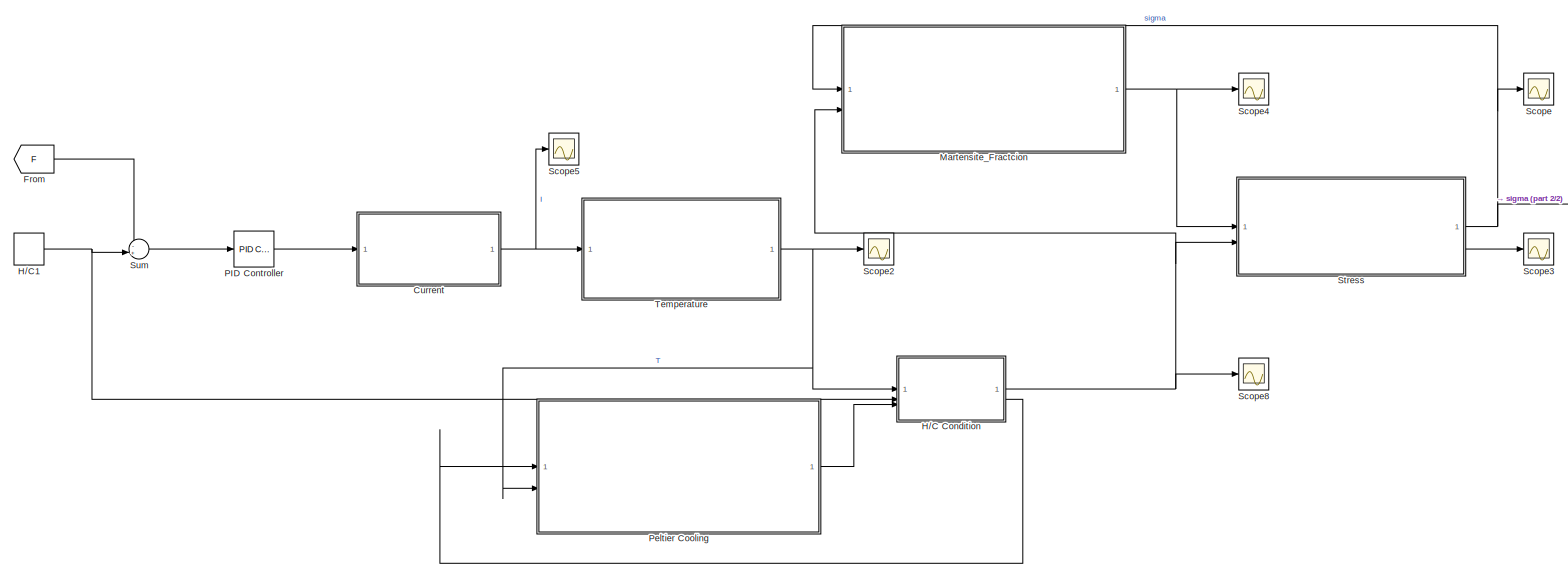
[diagram: root canvas - part 1/2, most of the canvas]
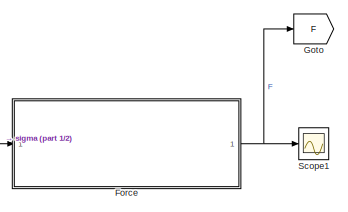
[diagram: root canvas - part 2/2, top right region]
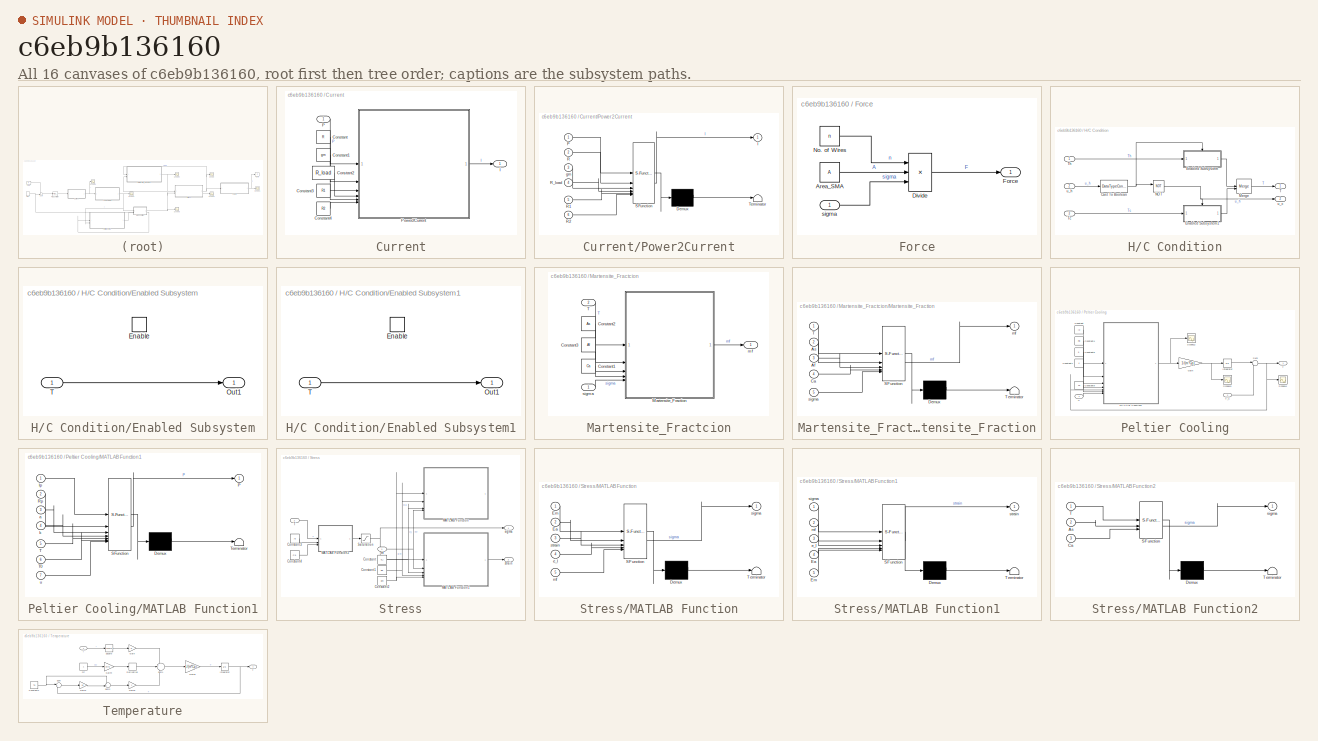
[diagram: thumbnail index - all 16 canvases of the model, root first then tree order]
MODEL slx_c6eb9b136160
KIND model
CONFIG AbsTol = auto
CONFIG EnableMultiTasking = off
CONFIG FixedStep = auto
CONFIG MaxStep = auto
CONFIG MinStep = auto
CONFIG RelTol = 1e-2
CONFIG SampleTimeConstraint = Unconstrained
CONFIG SolverName = VariableStepAuto
CONFIG StartTime = 0.0
CONFIG StopTime = 6
BLOCK [SubSystem] Current
BLOCK [Constant] Current/Constant
  Value = R
BLOCK [Constant] Current/Constant1
  Value = gm
BLOCK [Constant] Current/Constant2
  Value = R_load
BLOCK [Constant] Current/Constant3
  Value = R1
BLOCK [Constant] Current/Constant4
  Value = R2
BLOCK [Outport] Current/I
BLOCK [Inport] Current/P
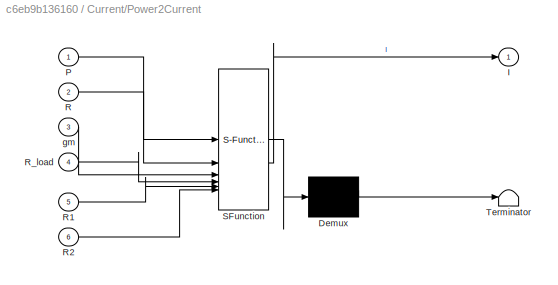
BLOCK [SubSystem] Current/Power2Current
  ErrorFcn = Stateflow.Translate.translate
  PermitHierarchicalResolution = ExplicitOnly
  SFBlockType = MATLAB Function
  TreatAsAtomicUnit = on
BLOCK [Demux] Current/Power2Current/ Demux 
  Outputs = 1
BLOCK [S-Function] Current/Power2Current/ SFunction 
  EnableBusSupport = on
  FunctionName = sf_sfun
  PortCounts = [6 2]
  SFcnIsStateOwnerBlock = off
  SFunctionDeploymentMode = off
  Tag = Stateflow S-Function 3
BLOCK [Terminator] Current/Power2Current/ Terminator 
BLOCK [Outport] Current/Power2Current/I
BLOCK [Inport] Current/Power2Current/P
BLOCK [Inport] Current/Power2Current/R
  Port = 2
BLOCK [Inport] Current/Power2Current/R1
  Port = 5
BLOCK [Inport] Current/Power2Current/R2
  Port = 6
BLOCK [Inport] Current/Power2Current/R_load
  Port = 4
BLOCK [Inport] Current/Power2Current/gm
  Port = 3
BLOCK [SubSystem] Force
BLOCK [Constant] Force/Area_SMA
  Value = A
BLOCK [Product] Force/Divide
  Inputs = ***
BLOCK [Outport] Force/Force
BLOCK [Constant] Force/No. of Wires
  Value = n
BLOCK [Inport] Force/sigma
BLOCK [From] From
  GotoTag = F
BLOCK [Goto] Goto
  GotoTag = F
BLOCK [SubSystem] H//C Condition
BLOCK [DataTypeConversion] H//C Condition/Cast To Boolean
  OutDataTypeStr = boolean
  RndMeth = Floor
  SaturateOnIntegerOverflow = off
BLOCK [SubSystem] H//C Condition/Enabled Subsystem
  TreatAsAtomicUnit = on
BLOCK [EnablePort] H//C Condition/Enabled Subsystem/Enable
BLOCK [Outport] H//C Condition/Enabled Subsystem/Out1
BLOCK [Inport] H//C Condition/Enabled Subsystem/T
BLOCK [SubSystem] H//C Condition/Enabled Subsystem1
  TreatAsAtomicUnit = on
BLOCK [EnablePort] H//C Condition/Enabled Subsystem1/Enable
BLOCK [Outport] H//C Condition/Enabled Subsystem1/Out1
BLOCK [Inport] H//C Condition/Enabled Subsystem1/T
BLOCK [Merge] H//C Condition/Merge
BLOCK [Logic] H//C Condition/NOT
  AllPortsSameDT = off
  IconShape = distinctive
  Operator = NOT
  OutDataTypeStr = boolean
BLOCK [Outport] H//C Condition/T
BLOCK [Inport] H//C Condition/Tc
  Port = 3
BLOCK [Inport] H//C Condition/Th
BLOCK [Outport] H//C Condition/u_c
  Port = 2
BLOCK [Inport] H//C Condition/u_h
  Port = 2
BLOCK [DiscretePulseGenerator] H//C1
  Amplitude = 20
  Period = 6
  PulseType = Time based
  PulseWidth = 50
BLOCK [SubSystem] Martensite_Fractcion
BLOCK [Constant] Martensite_Fractcion/Constant1
  Value = Ca
BLOCK [Constant] Martensite_Fractcion/Constant2
  Value = As
BLOCK [Constant] Martensite_Fractcion/Constant3
  Value = Af
BLOCK [SubSystem] Martensite_Fractcion/Martensite_Fraction
  ErrorFcn = Stateflow.Translate.translate
  PermitHierarchicalResolution = ExplicitOnly
  SFBlockType = MATLAB Function
  TreatAsAtomicUnit = on
BLOCK [Demux] Martensite_Fractcion/Martensite_Fraction/ Demux 
  Outputs = 1
BLOCK [S-Function] Martensite_Fractcion/Martensite_Fraction/ SFunction 
  EnableBusSupport = on
  FunctionName = sf_sfun
  PortCounts = [5 2]
  SFcnIsStateOwnerBlock = off
  SFunctionDeploymentMode = off
  Tag = Stateflow S-Function 1
BLOCK [Terminator] Martensite_Fractcion/Martensite_Fraction/ Terminator 
BLOCK [Inport] Martensite_Fractcion/Martensite_Fraction/Af
  Port = 3
BLOCK [Inport] Martensite_Fractcion/Martensite_Fraction/As
  Port = 2
BLOCK [Inport] Martensite_Fractcion/Martensite_Fraction/Ca
  Port = 4
BLOCK [Inport] Martensite_Fractcion/Martensite_Fraction/T
BLOCK [Outport] Martensite_Fractcion/Martensite_Fraction/mf
BLOCK [Inport] Martensite_Fractcion/Martensite_Fraction/sigma
  Port = 5
BLOCK [Inport] Martensite_Fractcion/T
  Port = 2
BLOCK [Outport] Martensite_Fractcion/mf
BLOCK [Inport] Martensite_Fractcion/sigma
BLOCK [Reference] PID Controller  REF=slpidlib/PID Controller
  LibrarySourceBlock = simulink/Continuous/PID Controller
  SourceBlock = slpidlib/PID Controller
  SourceType = PID 1dof
BLOCK [SubSystem] Peltier Cooling
BLOCK [Constant] Peltier Cooling/Constant
  Value = Ip
BLOCK [Constant] Peltier Cooling/Constant4
  Value = Rp
BLOCK [Constant] Peltier Cooling/Constant6
  Value = a
BLOCK [Constant] Peltier Cooling/Constant7
  Value = k
BLOCK [Constant] Peltier Cooling/Constant9
  Value = T0
BLOCK [Gain] Peltier Cooling/Gain
  Gain = 1/(m*Cp)
BLOCK [Integrator] Peltier Cooling/Integrator
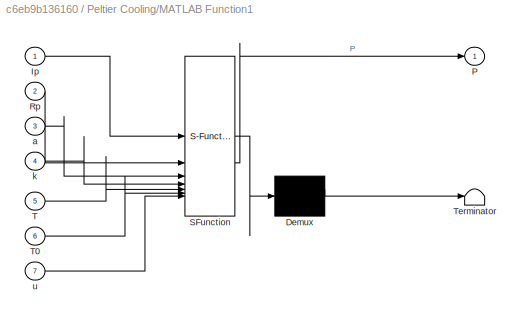
BLOCK [SubSystem] Peltier Cooling/MATLAB Function1
  ErrorFcn = Stateflow.Translate.translate
  PermitHierarchicalResolution = ExplicitOnly
  SFBlockType = MATLAB Function
  TreatAsAtomicUnit = on
BLOCK [Demux] Peltier Cooling/MATLAB Function1/ Demux 
  Outputs = 1
BLOCK [S-Function] Peltier Cooling/MATLAB Function1/ SFunction 
  EnableBusSupport = on
  FunctionName = sf_sfun
  PortCounts = [7 2]
  SFcnIsStateOwnerBlock = off
  SFunctionDeploymentMode = off
  Tag = Stateflow S-Function 7
BLOCK [Terminator] Peltier Cooling/MATLAB Function1/ Terminator 
BLOCK [Inport] Peltier Cooling/MATLAB Function1/Ip
BLOCK [Outport] Peltier Cooling/MATLAB Function1/P
BLOCK [Inport] Peltier Cooling/MATLAB Function1/Rp
  Port = 2
BLOCK [Inport] Peltier Cooling/MATLAB Function1/T
  Port = 5
BLOCK [Inport] Peltier Cooling/MATLAB Function1/T0
  Port = 6
BLOCK [Inport] Peltier Cooling/MATLAB Function1/a
  Port = 3
BLOCK [Inport] Peltier Cooling/MATLAB Function1/k
  Port = 4
BLOCK [Inport] Peltier Cooling/MATLAB Function1/u
  Port = 7
BLOCK [Scope] Peltier Cooling/Scope12
  Floating = off
  NumInputPorts = 1
  ScopeSpecificationString = Simulink.scopes.TimeScopeBlockCfg('CurrentConfiguration', extmgr.ConfigurationSet(extmgr.Configuration('Core','General UI',true),extmgr.Configuration('Core','Source UI',true),extmgr.Configuration('Sources','WiredSimulink',true,'DataLoggingVariableName','ScopeData5'),extmgr.Configuration('Visuals','Time Domain',true,'SerializedDisplays',{struct('MinYLimReal','-0.000018','MaxYLimReal','0.000002','YL...<+1457ch>
BLOCK [Scope] Peltier Cooling/Scope13
  Floating = off
  NumInputPorts = 1
  ScopeSpecificationString = Simulink.scopes.TimeScopeBlockCfg('CurrentConfiguration', extmgr.ConfigurationSet(extmgr.Configuration('Core','General UI',true),extmgr.Configuration('Core','Source UI',true),extmgr.Configuration('Sources','WiredSimulink',true,'DataLoggingVariableName','ScopeData6'),extmgr.Configuration('Visuals','Time Domain',true,'SerializedDisplays',{struct('MinYLimReal','-14334.91799','MaxYLimReal','1592.76867...<+1468ch>
BLOCK [Scope] Peltier Cooling/Scope14
  Floating = off
  NumInputPorts = 1
  ScopeSpecificationString = Simulink.scopes.TimeScopeBlockCfg('CurrentConfiguration', extmgr.ConfigurationSet(extmgr.Configuration('Core','General UI',true),extmgr.Configuration('Core','Source UI',true),extmgr.Configuration('Sources','WiredSimulink',true,'DataLoggingVariableName','ScopeData7'),extmgr.Configuration('Visuals','Time Domain',true,'SerializedDisplays',{struct('MinYLimReal','-2.7554','MaxYLimReal','24.79859','YLab...<+1441ch>
BLOCK [Sum] Peltier Cooling/Sum
  Inputs = |++
BLOCK [Outport] Peltier Cooling/T
BLOCK [Inport] Peltier Cooling/T_h
  Port = 2
BLOCK [Inport] Peltier Cooling/u
BLOCK [Scope] Scope
  Floating = off
  NumInputPorts = 1
  ScopeSpecificationString = Simulink.scopes.TimeScopeBlockCfg('CurrentConfiguration', extmgr.ConfigurationSet(extmgr.Configuration('Core','General UI',true),extmgr.Configuration('Core','Source UI',true),extmgr.Configuration('Sources','WiredSimulink',true),extmgr.Configuration('Visuals','Time Domain',true,'SerializedDisplays',{struct('MinYLimReal','-21.25','MaxYLimReal','191.25','YLabelReal','','MinYLimMag','0.00000','MaxYLim...<+1361ch>
BLOCK [Scope] Scope1
  Floating = off
  NumInputPorts = 1
  ScopeSpecificationString = Simulink.scopes.TimeScopeBlockCfg('CurrentConfiguration', extmgr.ConfigurationSet(extmgr.Configuration('Core','General UI',true),extmgr.Configuration('Core','Source UI',true),extmgr.Configuration('Sources','WiredSimulink',true,'DataLoggingVariableName','ScopeData1'),extmgr.Configuration('Visuals','Time Domain',true,'SerializedDisplays',{struct('MinYLimReal','-5.34071','MaxYLimReal','48.06637','YLa...<+1439ch>
BLOCK [Scope] Scope2
  Floating = off
  NumInputPorts = 1
  ScopeSpecificationString = Simulink.scopes.TimeScopeBlockCfg('CurrentConfiguration', extmgr.ConfigurationSet(extmgr.Configuration('Core','General UI',true),extmgr.Configuration('Core','Source UI',true),extmgr.Configuration('Sources','WiredSimulink',true,'DataLoggingVariableName','ScopeData2'),extmgr.Configuration('Visuals','Time Domain',true,'SerializedDisplays',{struct('MinYLimReal','-1301.25979','MaxYLimReal','11711.33808...<+1430ch>
BLOCK [Scope] Scope3
  Floating = off
  NumInputPorts = 1
  ScopeSpecificationString = Simulink.scopes.TimeScopeBlockCfg('CurrentConfiguration', extmgr.ConfigurationSet(extmgr.Configuration('Core','General UI',true),extmgr.Configuration('Core','Source UI',true),extmgr.Configuration('Sources','WiredSimulink',true,'DataLoggingVariableName','ScopeData3'),extmgr.Configuration('Visuals','Time Domain',true,'SerializedDisplays',{struct('MinYLimReal','-0.008','MaxYLimReal','0.06375','YLabel...<+1412ch>
BLOCK [Scope] Scope4
  Floating = off
  NumInputPorts = 1
  ScopeSpecificationString = Simulink.scopes.TimeScopeBlockCfg('CurrentConfiguration', extmgr.ConfigurationSet(extmgr.Configuration('Core','General UI',true),extmgr.Configuration('Core','Source UI',true),extmgr.Configuration('Sources','WiredSimulink',true,'DataLoggingVariableName','ScopeData4'),extmgr.Configuration('Visuals','Time Domain',true,'SerializedDisplays',{struct('MinYLimReal','-0.125','MaxYLimReal','1.125','YLabelRe...<+1411ch>
BLOCK [Scope] Scope5
  Floating = off
  NumInputPorts = 1
  ScopeSpecificationString = Simulink.scopes.TimeScopeBlockCfg('CurrentConfiguration', extmgr.ConfigurationSet(extmgr.Configuration('Core','General UI',true),extmgr.Configuration('Core','Source UI',true),extmgr.Configuration('Sources','WiredSimulink',true,'DataLoggingVariableName','ScopeData1'),extmgr.Configuration('Visuals','Time Domain',true,'SerializedDisplays',{struct('MinYLimReal','-1.00000','MaxYLimReal','1.00000','YLab...<+1404ch>
BLOCK [Scope] Scope8
  Floating = off
  NumInputPorts = 1
  ScopeSpecificationString = Simulink.scopes.TimeScopeBlockCfg('CurrentConfiguration', extmgr.ConfigurationSet(extmgr.Configuration('Core','General UI',true),extmgr.Configuration('Core','Source UI',true),extmgr.Configuration('Sources','WiredSimulink',true,'DataLoggingVariableName','ScopeData3'),extmgr.Configuration('Visuals','Time Domain',true,'SerializedDisplays',{struct('MinYLimReal','-5.62492','MaxYLimReal','50.62431','YLa...<+1422ch>
BLOCK [SubSystem] Stress
BLOCK [Constant] Stress/Constant
  Value = e_l
BLOCK [Constant] Stress/Constant1
  Value = Ea
BLOCK [Constant] Stress/Constant2
  Value = Em
BLOCK [Constant] Stress/Constant3
  Value = As
BLOCK [Constant] Stress/Constant4
  Value = Ca
BLOCK [SubSystem] Stress/MATLAB Function
  Commented = on
  ErrorFcn = Stateflow.Translate.translate
  PermitHierarchicalResolution = ExplicitOnly
  SFBlockType = MATLAB Function
  TreatAsAtomicUnit = on
BLOCK [Demux] Stress/MATLAB Function/ Demux 
  Outputs = 1
BLOCK [S-Function] Stress/MATLAB Function/ SFunction 
  EnableBusSupport = on
  FunctionName = sf_sfun
  PortCounts = [5 2]
  SFcnIsStateOwnerBlock = off
  SFunctionDeploymentMode = off
  Tag = Stateflow S-Function 2
BLOCK [Terminator] Stress/MATLAB Function/ Terminator 
BLOCK [Inport] Stress/MATLAB Function/Ea
  Port = 2
BLOCK [Inport] Stress/MATLAB Function/Em
BLOCK [Inport] Stress/MATLAB Function/e_l
  Port = 4
BLOCK [Inport] Stress/MATLAB Function/mf
  Port = 5
BLOCK [Outport] Stress/MATLAB Function/sigma
BLOCK [Inport] Stress/MATLAB Function/strain
  Port = 3
BLOCK [SubSystem] Stress/MATLAB Function1
  ErrorFcn = Stateflow.Translate.translate
  PermitHierarchicalResolution = ExplicitOnly
  SFBlockType = MATLAB Function
  TreatAsAtomicUnit = on
BLOCK [Demux] Stress/MATLAB Function1/ Demux 
  Outputs = 1
BLOCK [S-Function] Stress/MATLAB Function1/ SFunction 
  EnableBusSupport = on
  FunctionName = sf_sfun
  PortCounts = [5 2]
  SFcnIsStateOwnerBlock = off
  SFunctionDeploymentMode = off
  Tag = Stateflow S-Function 4
BLOCK [Terminator] Stress/MATLAB Function1/ Terminator 
BLOCK [Inport] Stress/MATLAB Function1/Ea
  Port = 4
BLOCK [Inport] Stress/MATLAB Function1/Em
  Port = 5
BLOCK [Inport] Stress/MATLAB Function1/e_l
  Port = 3
BLOCK [Inport] Stress/MATLAB Function1/mf
  Port = 2
BLOCK [Inport] Stress/MATLAB Function1/sigma
BLOCK [Outport] Stress/MATLAB Function1/strain
BLOCK [SubSystem] Stress/MATLAB Function2
  ErrorFcn = Stateflow.Translate.translate
  PermitHierarchicalResolution = ExplicitOnly
  SFBlockType = MATLAB Function
  TreatAsAtomicUnit = on
BLOCK [Demux] Stress/MATLAB Function2/ Demux 
  Outputs = 1
BLOCK [S-Function] Stress/MATLAB Function2/ SFunction 
  EnableBusSupport = on
  FunctionName = sf_sfun
  PortCounts = [3 2]
  SFcnIsStateOwnerBlock = off
  SFunctionDeploymentMode = off
  Tag = Stateflow S-Function 5
BLOCK [Terminator] Stress/MATLAB Function2/ Terminator 
BLOCK [Inport] Stress/MATLAB Function2/As
  Port = 2
BLOCK [Inport] Stress/MATLAB Function2/Ca
  Port = 3
BLOCK [Inport] Stress/MATLAB Function2/T
BLOCK [Outport] Stress/MATLAB Function2/sigma
BLOCK [Saturate] Stress/Saturation
  LowerLimit = 0
  UpperLimit = 170
BLOCK [Inport] Stress/T
  Port = 2
BLOCK [Inport] Stress/mf
BLOCK [Outport] Stress/sigma
BLOCK [Outport] Stress/strain
  Port = 2
BLOCK [Sum] Sum
  Inputs = -+|
BLOCK [SubSystem] Temperature
BLOCK [Constant] Temperature/Constant2
  Value = T0
BLOCK [Derivative] Temperature/Derivative
  Commented = on
BLOCK [Gain] Temperature/Gain
  Gain = R
BLOCK [Gain] Temperature/Gain1
  Gain = 1/2
BLOCK [Gain] Temperature/Gain2
  Gain = c
BLOCK [Gain] Temperature/Gain3
  Gain = 1/(m*Cp)
BLOCK [Gain] Temperature/Gain4
  Commented = on
  Gain = m*h
BLOCK [Inport] Temperature/I
BLOCK [Integrator] Temperature/Integrator
BLOCK [Math] Temperature/Square
  Operator = square
BLOCK [Sum] Temperature/Sum
  Inputs = |++
BLOCK [Sum] Temperature/Sum1
  Inputs = +--
BLOCK [Sum] Temperature/Sum2
  Inputs = -+|
BLOCK [Outport] Temperature/T
BLOCK [Constant] Temperature/mf
  Commented = on
LINE Current/Constant1:1 -> Current/Power2Current:3
LINE Current/Constant2:1 -> Current/Power2Current:4
LINE Current/Constant3:1 -> Current/Power2Current:5
LINE Current/Constant4:1 -> Current/Power2Current:6
LINE Current/Constant:1 -> Current/Power2Current:2
LINE Current/P:1 -> Current/Power2Current:1
LINE Current/Power2Current:1 -> Current/I:1
NET Current:1 -> Scope5:1, Temperature:1
LINE Force/Area_SMA:1 -> Force/Divide:2
LINE Force/Divide:1 -> Force/Force:1
LINE Force/No. of Wires:1 -> Force/Divide:1
LINE Force/sigma:1 -> Force/Divide:3
NET Force:1 -> Goto:1, Scope1:1
LINE From:1 -> Sum:1
NET H//C Condition/Cast To Boolean:1 -> H//C Condition/Enabled Subsystem:enable, H//C Condition/NOT:1
LINE H//C Condition/Enabled Subsystem/T:1 -> H//C Condition/Enabled Subsystem/Out1:1
LINE H//C Condition/Enabled Subsystem1/T:1 -> H//C Condition/Enabled Subsystem1/Out1:1
LINE H//C Condition/Enabled Subsystem1:1 -> H//C Condition/Merge:2
LINE H//C Condition/Enabled Subsystem:1 -> H//C Condition/Merge:1
LINE H//C Condition/Merge:1 -> H//C Condition/T:1
NET H//C Condition/NOT:1 -> H//C Condition/Enabled Subsystem1:enable, H//C Condition/u_c:1
LINE H//C Condition/Tc:1 -> H//C Condition/Enabled Subsystem1:1
LINE H//C Condition/Th:1 -> H//C Condition/Enabled Subsystem:1
LINE H//C Condition/u_h:1 -> H//C Condition/Cast To Boolean:1
NET H//C Condition:1 -> Martensite_Fractcion:2, Scope8:1, Stress:2
LINE H//C Condition:2 -> Peltier Cooling:1
NET H//C1:1 -> H//C Condition:2, Sum:2
LINE Martensite_Fractcion/Constant1:1 -> Martensite_Fractcion/Martensite_Fraction:4
LINE Martensite_Fractcion/Constant2:1 -> Martensite_Fractcion/Martensite_Fraction:2
LINE Martensite_Fractcion/Constant3:1 -> Martensite_Fractcion/Martensite_Fraction:3
LINE Martensite_Fractcion/Martensite_Fraction:1 -> Martensite_Fractcion/mf:1
LINE Martensite_Fractcion/T:1 -> Martensite_Fractcion/Martensite_Fraction:1
LINE Martensite_Fractcion/sigma:1 -> Martensite_Fractcion/Martensite_Fraction:5
NET Martensite_Fractcion:1 -> Scope4:1, Stress:1
LINE PID Controller:1 -> Current:1
LINE Peltier Cooling/Constant4:1 -> Peltier Cooling/MATLAB Function1:2
LINE Peltier Cooling/Constant6:1 -> Peltier Cooling/MATLAB Function1:3
LINE Peltier Cooling/Constant7:1 -> Peltier Cooling/MATLAB Function1:4
LINE Peltier Cooling/Constant9:1 -> Peltier Cooling/MATLAB Function1:6
LINE Peltier Cooling/Constant:1 -> Peltier Cooling/MATLAB Function1:1
NET Peltier Cooling/Gain:1 -> Peltier Cooling/Integrator:1, Peltier Cooling/Scope13:1
LINE Peltier Cooling/Integrator:1 -> Peltier Cooling/Sum:1
NET Peltier Cooling/MATLAB Function1:1 -> Peltier Cooling/Gain:1, Peltier Cooling/Scope12:1
NET Peltier Cooling/Sum:1 -> Peltier Cooling/MATLAB Function1:5, Peltier Cooling/Scope14:1, Peltier Cooling/T:1
LINE Peltier Cooling/T_h:1 -> Peltier Cooling/Sum:2
LINE Peltier Cooling/u:1 -> Peltier Cooling/MATLAB Function1:7
LINE Peltier Cooling:1 -> H//C Condition:3
NET Stress/Constant1:1 -> Stress/MATLAB Function1:4, Stress/MATLAB Function:2
NET Stress/Constant2:1 -> Stress/MATLAB Function1:5, Stress/MATLAB Function:1
LINE Stress/Constant3:1 -> Stress/MATLAB Function2:2
LINE Stress/Constant4:1 -> Stress/MATLAB Function2:3
NET Stress/Constant:1 -> Stress/MATLAB Function1:3, Stress/MATLAB Function:4
LINE Stress/MATLAB Function1:1 -> Stress/strain:1
LINE Stress/MATLAB Function2:1 -> Stress/Saturation:1
NET Stress/Saturation:1 -> Stress/MATLAB Function1:1, Stress/sigma:1
LINE Stress/T:1 -> Stress/MATLAB Function2:1
NET Stress/mf:1 -> Stress/MATLAB Function1:2, Stress/MATLAB Function:5
NET Stress:1 -> Force:1, Martensite_Fractcion:1, Scope:1
LINE Stress:2 -> Scope3:1
LINE Sum:1 -> PID Controller:1
NET Temperature/Constant2:1 -> Temperature/Sum2:1, Temperature/Sum:1
LINE Temperature/Derivative:1 -> Temperature/Sum1:2
LINE Temperature/Gain1:1 -> Temperature/Sum2:2
LINE Temperature/Gain2:1 -> Temperature/Sum1:3
LINE Temperature/Gain3:1 -> Temperature/Integrator:1
LINE Temperature/Gain4:1 -> Temperature/Derivative:1
LINE Temperature/Gain:1 -> Temperature/Sum1:1
LINE Temperature/I:1 -> Temperature/Square:1
NET Temperature/Integrator:1 -> Temperature/Sum:2, Temperature/T:1
LINE Temperature/Square:1 -> Temperature/Gain:1
LINE Temperature/Sum1:1 -> Temperature/Gain3:1
LINE Temperature/Sum2:1 -> Temperature/Gain2:1
LINE Temperature/Sum:1 -> Temperature/Gain1:1
LINE Temperature/mf:1 -> Temperature/Gain4:1
NET Temperature:1 -> H//C Condition:1, Peltier Cooling:2, Scope2:1
note: NET lines group one-source signal fan-out (src -> all destinations, sorted); 1:1 wires keep LINE
CHART Martensite_Fractcion/Martensite_Fraction states=1 transitions=1
  STATE_LABEL 'eML_blk_kernel()'
  STATE_LABEL 'SCRIPT:\nfunction mf = fcn(T, As, Af, Ca, sigma)\n\n%mf = 1- exp(Ca*(T-As)+Cm*sigma);\n%mf = 1- exp(log(0.01)*(As-T)/(As-Af)+sigma*log(0.01)/(Ca*(As-Af)));\nif T>As\n    mf = 1-(1/2)*(cos(pi*(T-As)/(Af-As)-pi*sigma/(Ca*(Af-As)))+1);\nelse\n    mf = 1;\nend\n'
CHART Stress/MATLAB Function states=1 transitions=1
  STATE_LABEL 'eML_blk_kernel()'
  STATE_LABEL 'SCRIPT:\nfunction sigma = fcn(Em, Ea, strain, e_l, mf)\n\nE = Em*mf + Ea*(1-mf);\n\nsigma = E*strain - e_l*mf;\n'
CHART Current/Power2Current states=1 transitions=1
  STATE_LABEL 'eML_blk_kernel()'
  STATE_LABEL 'SCRIPT:\nfunction I = fcn(P,R, gm, R_load, R1, R2)\n\nI_req = sqrt(P/R);\nV_in = I_req/gm;\nGv = (1+R1/R2);\nV_out = V_in*Gv;\n\nI = V_out/R_load;\n\n'
CHART Stress/MATLAB Function1 states=1 transitions=1
  STATE_LABEL 'eML_blk_kernel()'
  STATE_LABEL 'SCRIPT:\nfunction strain = fcn(sigma, mf, e_l, Ea, Em)\n\nE = Em*mf + Ea*(1-mf);\n\nstrain = (sigma/E) + e_l*mf;\n'
CHART Stress/MATLAB Function2 states=1 transitions=1
  STATE_LABEL 'eML_blk_kernel()'
  STATE_LABEL 'SCRIPT:\nfunction sigma = fcn(T, As, Ca)\n\nsigma = Ca * (T-As);\n'
CHART Peltier Cooling/MATLAB Function1 states=1 transitions=1
  STATE_LABEL 'eML_blk_kernel()'
  STATE_LABEL 'SCRIPT:\nfunction P = fcn(Ip, Rp, a, k, T, T0, u)\n\nTc = T0;\n\nif (T>T0)&&(u==0)\n    I = Ip;\nelse\n    I = 0;\nend\n\nP = (1/12)*(I^2)*Rp - a*I*T - k*(T-Tc);\n'
CHART  states=0 transitions=0
CHART  states=0 transitions=0
CHART  states=0 transitions=0
CHART  states=0 transitions=0
CHART  states=0 transitions=0
CHART  states=0 transitions=0
